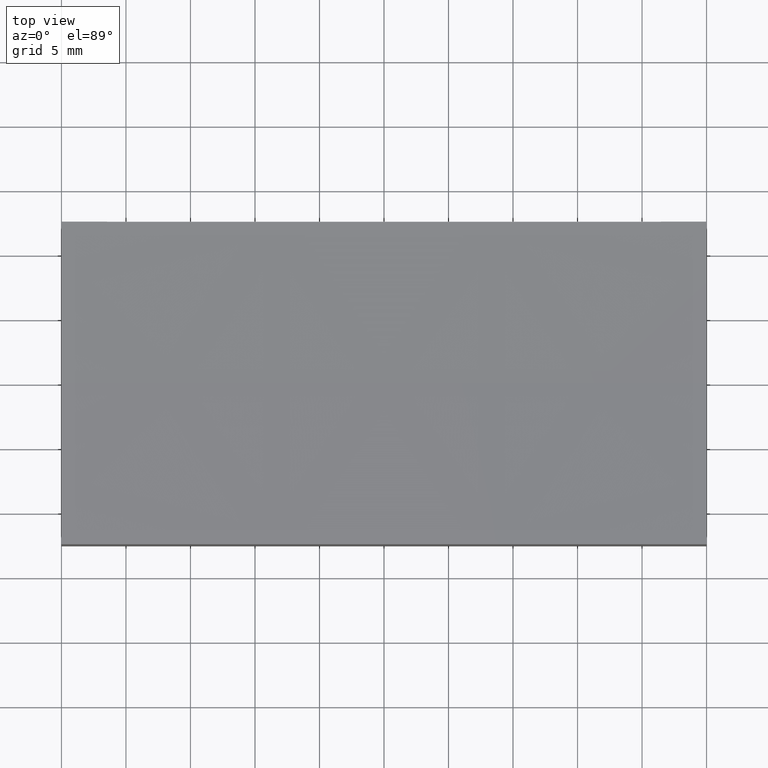
[diagram: clean part render]
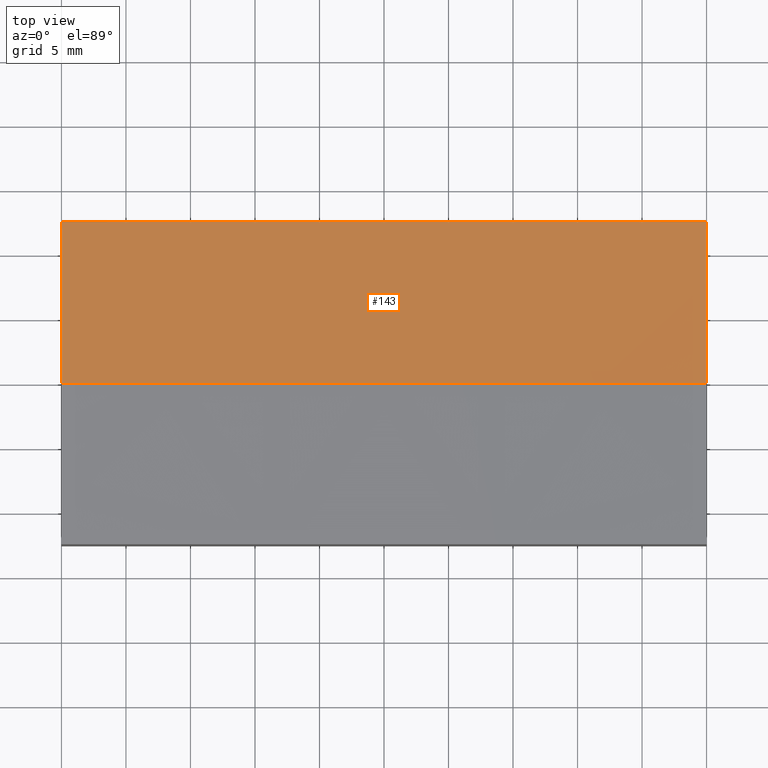
[diagram: same view with one face highlighted and labeled with its STEP entity id]
A machine part, top view. The second image highlights one B-rep face of the part: STEP entity #143.
In plain terms, the highlighted spherical surface has radius 1000 mm.
Its self-contained STEP definition (entity closure, byte-faithful):
#9 = EDGE_CURVE ( 'NONE', #28, #202, #21, .T. ) ;
#12 = DIRECTION ( 'NONE',  ( 0.000000000000000000, -1.000000000000000000, -0.000000000000000000 ) ) ;
#15 = AXIS2_PLACEMENT_3D ( 'NONE', #213, #244, #89 ) ;
#19 = DIRECTION ( 'NONE',  ( 0.000000000000000000, 0.000000000000000000, -1.000000000000000000 ) ) ;
#21 = CIRCLE ( 'NONE', #146, 1000.000000000000000 ) ;
#23 = DIRECTION ( 'NONE',  ( 1.000000000000000000, -2.775557561562891351E-16, -0.000000000000000000 ) ) ;
#28 = VERTEX_POINT ( 'NONE', #224 ) ;
#31 = DIRECTION ( 'NONE',  ( 1.000000000000000000, 0.000000000000000000, 0.000000000000000000 ) ) ;
#34 = CARTESIAN_POINT ( 'NONE',  ( 25.00000000000000355, 12.50000000000000000, 9.390701323762185027 ) ) ;
#36 = CARTESIAN_POINT ( 'NONE',  ( 0.000000000000000000, 12.50000000000000000, 1008.999999999999886 ) ) ;
#42 = VERTEX_POINT ( 'NONE', #81 ) ;
#46 = DIRECTION ( 'NONE',  ( 0.000000000000000000, 1.000000000000000000, -0.000000000000000000 ) ) ;
#51 = SPHERICAL_SURFACE ( 'NONE', #245, 999.9999999999998863 ) ;
#57 = CIRCLE ( 'NONE', #198, 999.6874511566102228 ) ;
#58 = DIRECTION ( 'NONE',  ( -0.000000000000000000, 1.000000000000000000, -0.000000000000000000 ) ) ;
#61 = ORIENTED_EDGE ( 'NONE', *, *, #196, .T. ) ;
#73 = EDGE_CURVE ( 'NONE', #28, #103, #75, .T. ) ;
#75 = CIRCLE ( 'NONE', #228, 999.6874511566102228 ) ;
#81 = CARTESIAN_POINT ( 'NONE',  ( -25.00000000000000000, -3.061616997868383043E-15, 9.312548843389723885 ) ) ;
#82 = ORIENTED_EDGE ( 'NONE', *, *, #9, .F. ) ;
#89 = DIRECTION ( 'NONE',  ( 1.000000000000000000, 1.224646799147353207E-16, 0.000000000000000000 ) ) ;
#100 = EDGE_CURVE ( 'NONE', #42, #202, #104, .T. ) ;
#103 = VERTEX_POINT ( 'NONE', #34 ) ;
#104 = CIRCLE ( 'NONE', #15, 999.9999999999998863 ) ;
#108 = DIRECTION ( 'NONE',  ( -2.776425330088568458E-16, -1.000000000000000000, 0.000000000000000000 ) ) ;
#119 = DIRECTION ( 'NONE',  ( -1.000000000000000000, -1.387778780781445676E-16, 0.000000000000000000 ) ) ;
#120 = CARTESIAN_POINT ( 'NONE',  ( -25.00000000000000000, 12.50000000000000000, 9.390701323762185027 ) ) ;
#128 = DIRECTION ( 'NONE',  ( 0.000000000000000000, 0.000000000000000000, 1.000000000000000000 ) ) ;
#140 = EDGE_LOOP ( 'NONE', ( #206, #236, #82, #221, #61 ) ) ;
#143 = ADVANCED_FACE ( 'NONE', ( #168 ), #51, .F. ) ;
#146 = AXIS2_PLACEMENT_3D ( 'NONE', #183, #46, #128 ) ;
#168 = FACE_OUTER_BOUND ( 'NONE', #140, .T. ) ;
#183 = CARTESIAN_POINT ( 'NONE',  ( 0.000000000000000000, 0.000000000000000000, 1008.999999999999886 ) ) ;
#193 = DIRECTION ( 'NONE',  ( -1.388212665044284229E-16, 1.000000000000000000, 0.000000000000000000 ) ) ;
#194 = CARTESIAN_POINT ( 'NONE',  ( -25.00000000000000000, -3.469446951953614189E-15, 1008.999999999999886 ) ) ;
#196 = EDGE_CURVE ( 'NONE', #103, #201, #220, .T. ) ;
#198 = AXIS2_PLACEMENT_3D ( 'NONE', #194, #119, #193 ) ;
#201 = VERTEX_POINT ( 'NONE', #120 ) ;
#202 = VERTEX_POINT ( 'NONE', #215 ) ;
#206 = ORIENTED_EDGE ( 'NONE', *, *, #226, .T. ) ;
#209 = CARTESIAN_POINT ( 'NONE',  ( 0.000000000000000000, 0.000000000000000000, 1008.999999999999886 ) ) ;
#210 = AXIS2_PLACEMENT_3D ( 'NONE', #36, #58, #19 ) ;
#213 = CARTESIAN_POINT ( 'NONE',  ( 0.000000000000000000, 0.000000000000000000, 1008.999999999999886 ) ) ;
#215 = CARTESIAN_POINT ( 'NONE',  ( 6.119331653823657559E-14, 0.000000000000000000, 9.000000000000007105 ) ) ;
#220 = CIRCLE ( 'NONE', #210, 999.9218719480036270 ) ;
#221 = ORIENTED_EDGE ( 'NONE', *, *, #73, .T. ) ;
#224 = CARTESIAN_POINT ( 'NONE',  ( 25.00000000000000000, -3.851859888774471706E-31, 9.312548843389723885 ) ) ;
#226 = EDGE_CURVE ( 'NONE', #201, #42, #57, .T. ) ;
#228 = AXIS2_PLACEMENT_3D ( 'NONE', #240, #23, #108 ) ;
#236 = ORIENTED_EDGE ( 'NONE', *, *, #100, .T. ) ;
#240 = CARTESIAN_POINT ( 'NONE',  ( 25.00000000000000000, -6.938893903907228378E-15, 1008.999999999999886 ) ) ;
#244 = DIRECTION ( 'NONE',  ( 1.224646799147353207E-16, -1.000000000000000000, -4.778990533065456234E-36 ) ) ;
#245 = AXIS2_PLACEMENT_3D ( 'NONE', #209, #12, #31 ) ;